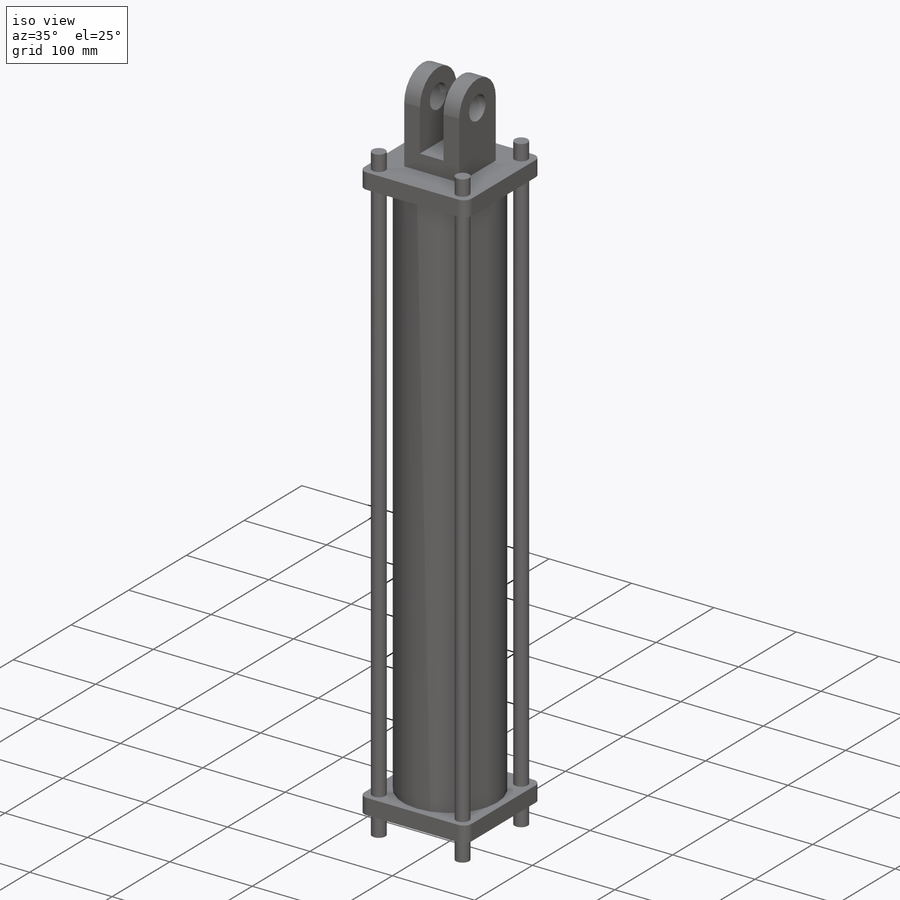
[diagram: iso view]
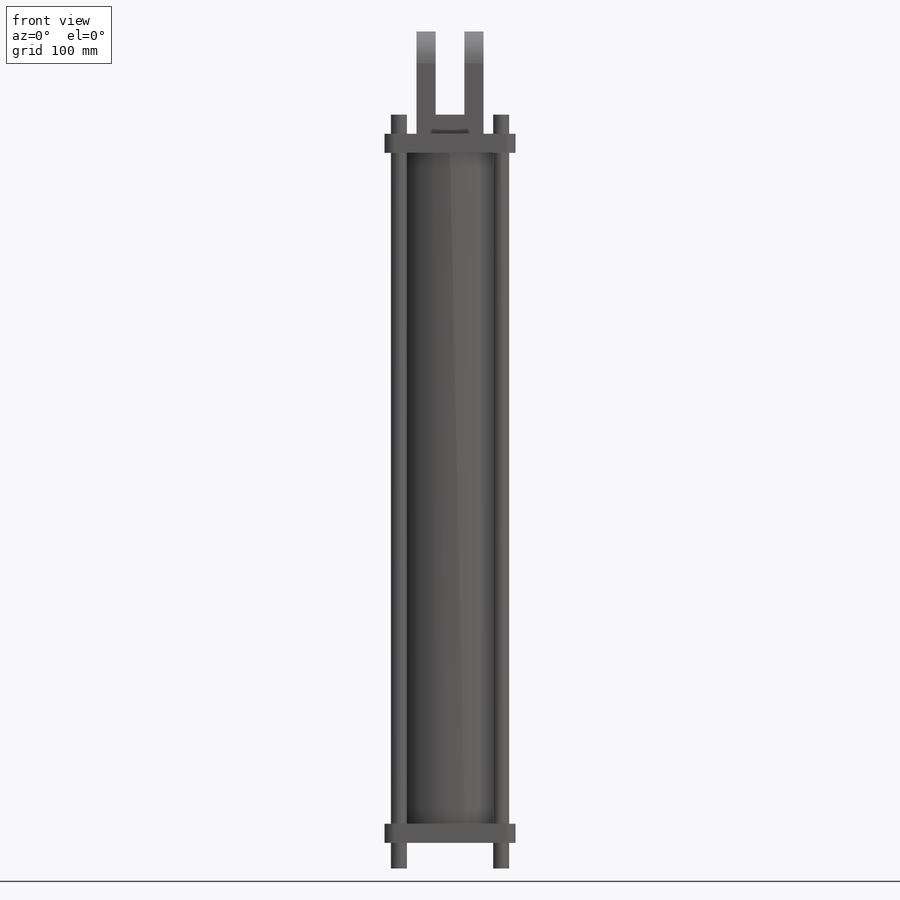
[diagram: front view]
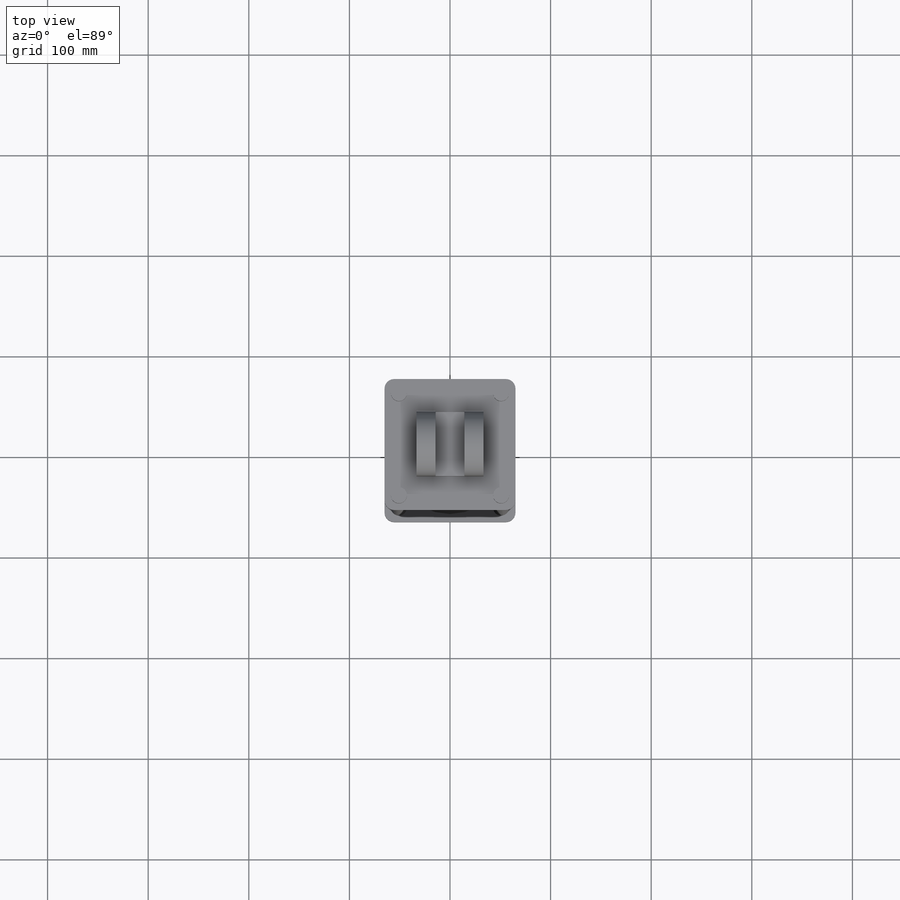
[diagram: top view]
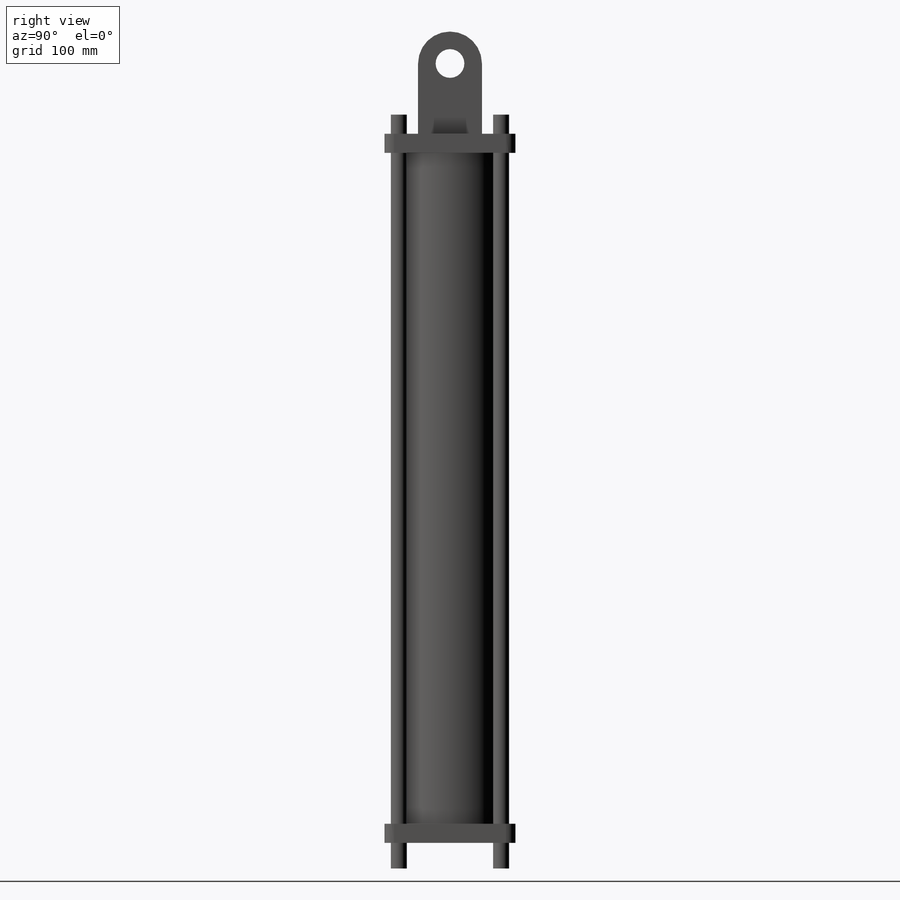
[diagram: right view]
SOLIDWORKS PART (.sldprt)
format: sldprt  version: not decoded by parser v0  size: 295,424 bytes
history: native  units: mm
features: sketch x10, extrude x5, cut_extrude x3, material x1, fillet x1 (+12 scaffold rows collapsed)
feature tree (32):
  scaffold x12  (default folders/planes/origin — collapsed)
  material  "Material <not specified>"
  sketch  "Sketch1"  dims[D1=130.175mm D2=130.175mm]
  extrude  "Boss-Extrude1"  Depth=19.05mm
  sketch  "Sketch2"  dims[D1=~55.420446mm D2=101.6mm D3=101.6mm]
  cut_extrude  "Cut-Extrude1"  [1 undecoded]
  sketch  "Sketch3"  dims[D2=25.4mm D3=31.75mm D1=69.85mm]
  extrude  "Boss-Extrude2"  Depth=66.675mm
  sketch  "Sketch4"  dims[D1=28.575mm D2=38.1mm]
  cut_extrude  "Cut-Extrude2"  [1 undecoded]
  sketch  "Sketch5"  dims[D1=101.6mm D2=114.3mm]
  extrude  "Boss-Extrude3"  Depth=666.75mm
  fillet  "Fillet1"  Radius=9.525mm
  sketch  "Sketch6"  dims[D1=0.0mm]
  extrude  "Boss-Extrude4"  Depth=19.05mm
  sketch  "Sketch7"  dims[D1=50.8mm]
  cut_extrude  "Cut-Extrude3"  [1 undecoded]
  sketch  "Sketch8"
  extrude  "Boss-Extrude5"  Depth=19.05mm
  sketch  "Sketch9"
  sketch  "Sketch10"
decode coverage: 13 of 19 modeling features carry decoded parameters
note: ~ marks probable driven/reference dimensions
note: 3 parameter values undecoded
summary: no parameter record found for 3 features
note: suppression state not decoded; provenance and decode notes live in map.json
